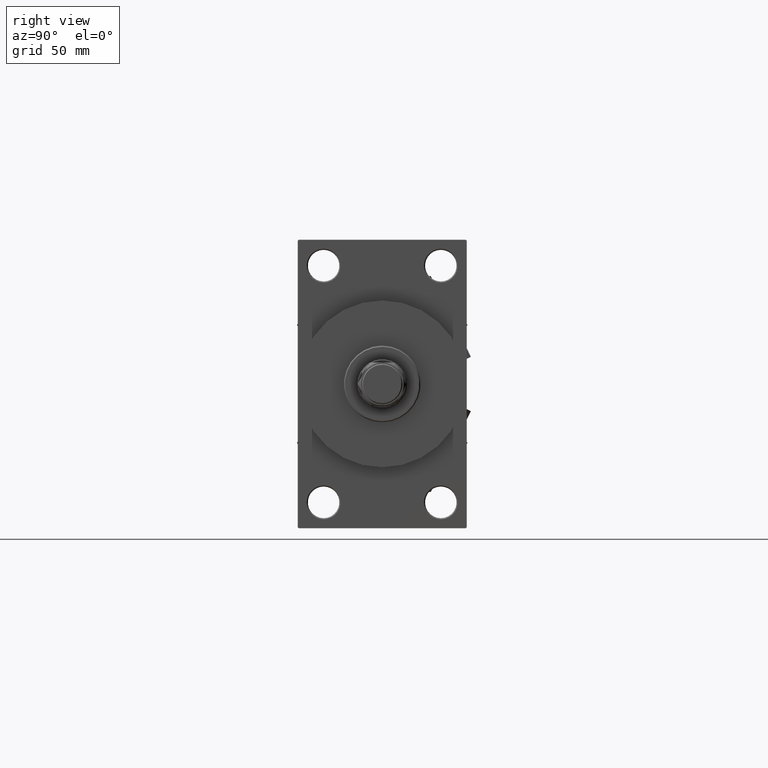
[diagram: clean part render]
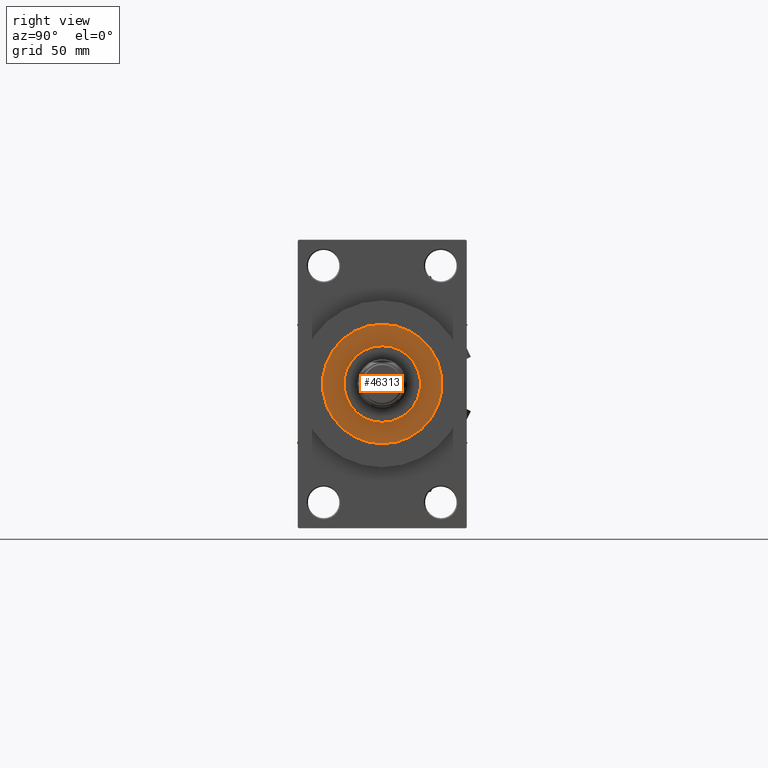
[diagram: same view with one face highlighted and labeled with its STEP entity id]
A machine part, right view. The second image highlights one B-rep face of the part: STEP entity #46313.
In plain terms, the highlighted planar face has unit normal (1, -0, -0).
Its self-contained STEP definition (entity closure, byte-faithful):
#1138 = DIRECTION ( 'NONE',  ( 0.000000000000000000, 0.000000000000000000, 1.000000000000000000 ) ) ;
#1209 = ORIENTED_EDGE ( 'NONE', *, *, #4283, .F. ) ;
#2806 = DIRECTION ( 'NONE',  ( 1.000000000000000000, 0.000000000000000000, -0.000000000000000000 ) ) ;
#4182 = DIRECTION ( 'NONE',  ( 1.000000000000000000, 0.000000000000000000, 0.000000000000000000 ) ) ;
#4283 = EDGE_CURVE ( 'NONE', #19954, #20866, #33931, .T. ) ;
#4291 = AXIS2_PLACEMENT_3D ( 'NONE', #24991, #40146, #40650 ) ;
#5508 = CIRCLE ( 'NONE', #32090, 17.00000000000000000 ) ;
#7142 = CARTESIAN_POINT ( 'NONE',  ( 0.000000000000000000, 0.000000000000000000, 43.25999999999999801 ) ) ;
#7515 = CIRCLE ( 'NONE', #4291, 26.50000000000000355 ) ;
#8587 = DIRECTION ( 'NONE',  ( 0.000000000000000000, 0.000000000000000000, 1.000000000000000000 ) ) ;
#9552 = EDGE_LOOP ( 'NONE', ( #39842, #13287 ) ) ;
#12695 = CARTESIAN_POINT ( 'NONE',  ( 26.50000000000000355, 3.245314017740486554E-15, 43.25999999999999801 ) ) ;
#13063 = EDGE_CURVE ( 'NONE', #20866, #19954, #5508, .T. ) ;
#13287 = ORIENTED_EDGE ( 'NONE', *, *, #21535, .T. ) ;
#16088 = CARTESIAN_POINT ( 'NONE',  ( -26.50000000000000355, 0.000000000000000000, 43.25999999999999801 ) ) ;
#17957 = CARTESIAN_POINT ( 'NONE',  ( 0.000000000000000000, 0.000000000000000000, 43.25999999999999801 ) ) ;
#19826 = CARTESIAN_POINT ( 'NONE',  ( 0.000000000000000000, 0.000000000000000000, 43.25999999999999801 ) ) ;
#19954 = VERTEX_POINT ( 'NONE', #23896 ) ;
#20866 = VERTEX_POINT ( 'NONE', #49712 ) ;
#21535 = EDGE_CURVE ( 'NONE', #25256, #40583, #36691, .T. ) ;
#22045 = AXIS2_PLACEMENT_3D ( 'NONE', #17957, #33833, #2806 ) ;
#23896 = CARTESIAN_POINT ( 'NONE',  ( -17.00000000000000000, 0.000000000000000000, 43.25999999999999801 ) ) ;
#24498 = DIRECTION ( 'NONE',  ( 0.000000000000000000, 0.000000000000000000, 1.000000000000000000 ) ) ;
#24748 = DIRECTION ( 'NONE',  ( 1.000000000000000000, 0.000000000000000000, 0.000000000000000000 ) ) ;
#24991 = CARTESIAN_POINT ( 'NONE',  ( 0.000000000000000000, 0.000000000000000000, 43.25999999999999801 ) ) ;
#25256 = VERTEX_POINT ( 'NONE', #12695 ) ;
#25860 = AXIS2_PLACEMENT_3D ( 'NONE', #19826, #1138, #4182 ) ;
#26567 = DIRECTION ( 'NONE',  ( 1.000000000000000000, 0.000000000000000000, 0.000000000000000000 ) ) ;
#28269 = CARTESIAN_POINT ( 'NONE',  ( 0.000000000000000000, 0.000000000000000000, 43.25999999999999801 ) ) ;
#30886 = EDGE_CURVE ( 'NONE', #40583, #25256, #7515, .T. ) ;
#32090 = AXIS2_PLACEMENT_3D ( 'NONE', #7142, #8587, #26567 ) ;
#33586 = FACE_OUTER_BOUND ( 'NONE', #9552, .T. ) ;
#33833 = DIRECTION ( 'NONE',  ( 0.000000000000000000, 0.000000000000000000, 1.000000000000000000 ) ) ;
#33931 = CIRCLE ( 'NONE', #25860, 17.00000000000000000 ) ;
#36691 = CIRCLE ( 'NONE', #39117, 26.50000000000000355 ) ;
#37366 = PLANE ( 'NONE',  #22045 ) ;
#38125 = FACE_BOUND ( 'NONE', #39282, .T. ) ;
#39117 = AXIS2_PLACEMENT_3D ( 'NONE', #28269, #24498, #24748 ) ;
#39282 = EDGE_LOOP ( 'NONE', ( #1209, #45352 ) ) ;
#39842 = ORIENTED_EDGE ( 'NONE', *, *, #30886, .T. ) ;
#40146 = DIRECTION ( 'NONE',  ( 0.000000000000000000, 0.000000000000000000, 1.000000000000000000 ) ) ;
#40583 = VERTEX_POINT ( 'NONE', #16088 ) ;
#40650 = DIRECTION ( 'NONE',  ( 1.000000000000000000, 0.000000000000000000, 0.000000000000000000 ) ) ;
#45352 = ORIENTED_EDGE ( 'NONE', *, *, #13063, .F. ) ;
#46313 = ADVANCED_FACE ( 'NONE', ( #38125, #33586 ), #37366, .T. ) ;
#49712 = CARTESIAN_POINT ( 'NONE',  ( 17.00000000000000000, 2.081899558550500280E-15, 43.25999999999999801 ) ) ;